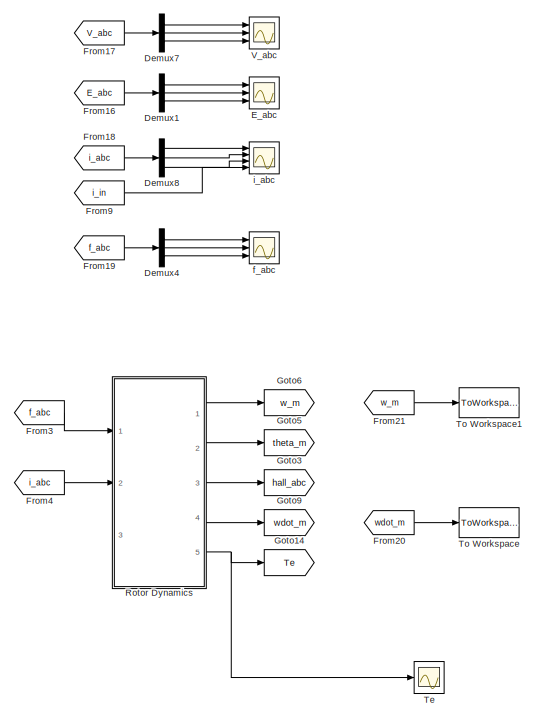
[diagram: root canvas - part 1/2, top right region]
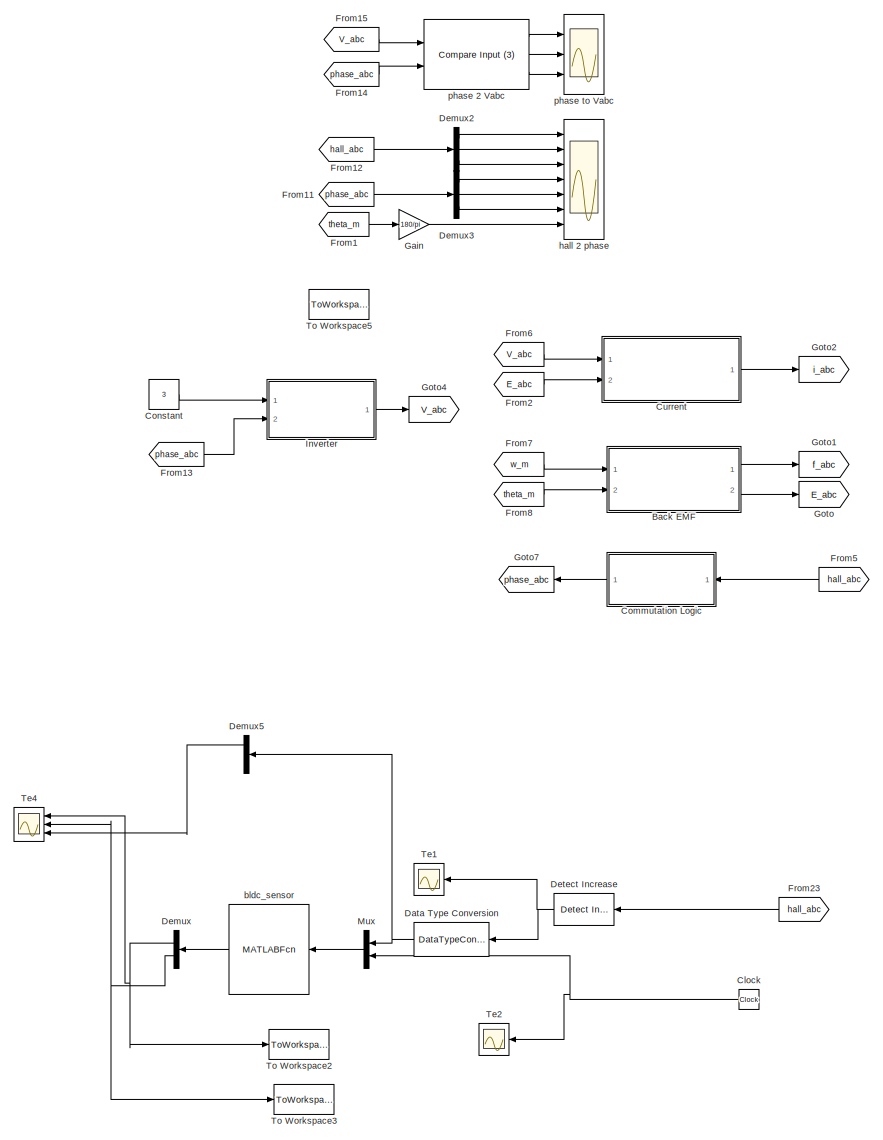
[diagram: root canvas - part 2/2, left side, full height]
MODEL slx_8224983045bb
KIND model
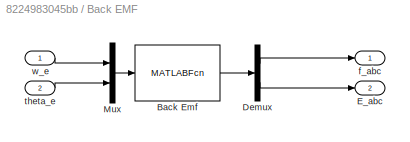
BLOCK [SubSystem] Back EMF
  Ports = [2, 2]
  RequestExecContextInheritance = off
BLOCK [MATLABFcn] Back EMF/Back Emf
  MATLABFcn = bldc_backemf
  Output1D = off
  OutputDimensions = [6,1]
  Ports = [1, 1]
BLOCK [Demux] Back EMF/Demux
  DisplayOption = bar
  Outputs = [3 3]
  Ports = [1, 2]
BLOCK [Outport] Back EMF/E_abc
  IconDisplay = Port number
  Port = 2
BLOCK [Mux] Back EMF/Mux
  DisplayOption = bar
  Inputs = [1;1]
  Ports = [2, 1]
BLOCK [Outport] Back EMF/f_abc
  IconDisplay = Port number
BLOCK [Inport] Back EMF/theta_e
  IconDisplay = Port number
  Port = 2
BLOCK [Inport] Back EMF/w_e
  IconDisplay = Port number
BLOCK [Clock] Clock
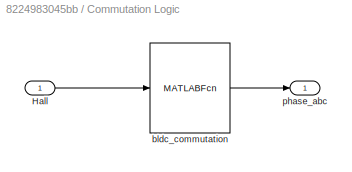
BLOCK [SubSystem] Commutation Logic
  Ports = [1, 1]
  RequestExecContextInheritance = off
BLOCK [Inport] Commutation Logic/Hall 
  IconDisplay = Port number
BLOCK [MATLABFcn] Commutation Logic/bldc_commutation
  MATLABFcn = bldc_commutation
  Output1D = off
  OutputDimensions = [3,1]
  Ports = [1, 1]
BLOCK [Outport] Commutation Logic/phase_abc
  IconDisplay = Port number
BLOCK [Constant] Constant
  Value = 3
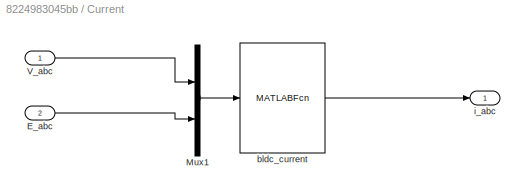
BLOCK [SubSystem] Current
  Ports = [2, 1]
  RequestExecContextInheritance = off
BLOCK [Inport] Current/E_abc
  IconDisplay = Port number
  Port = 2
BLOCK [Mux] Current/Mux1
  DisplayOption = bar
  Inputs = [3;3]
  Ports = [2, 1]
BLOCK [Inport] Current/V_abc
  IconDisplay = Port number
BLOCK [MATLABFcn] Current/bldc_current
  MATLABFcn = bldc_current
  Output1D = off
  OutputDimensions = [3,1]
  Ports = [1, 1]
BLOCK [Outport] Current/i_abc
  IconDisplay = Port number
BLOCK [DataTypeConversion] Data Type Conversion
  OutDataTypeStr = double
  RndMeth = Floor
  SampleTime = dt
  SaturateOnIntegerOverflow = off
BLOCK [Demux] Demux
  DisplayOption = bar
  Outputs = 2
  Ports = [1, 2]
BLOCK [Demux] Demux1
  DisplayOption = bar
  Outputs = 3
  Ports = [1, 3]
BLOCK [Demux] Demux2
  DisplayOption = bar
  Outputs = 3
  Ports = [1, 3]
BLOCK [Demux] Demux3
  DisplayOption = bar
  Outputs = 3
  Ports = [1, 3]
BLOCK [Demux] Demux4
  DisplayOption = bar
  Outputs = 3
  Ports = [1, 3]
BLOCK [Demux] Demux5
  DisplayOption = bar
  Outputs = 3
  Ports = [1, 3]
BLOCK [Demux] Demux7
  DisplayOption = bar
  Outputs = 3
  Ports = [1, 3]
BLOCK [Demux] Demux8
  DisplayOption = bar
  Outputs = 3
  Ports = [1, 3]
BLOCK [Reference] Detect Increase  REF=simulink/Logic and Bit
Operations/Detect
Increase
  InputProcessing = Inherited
  OutDataTypeStr = uint8
  Ports = [1, 1]
  SourceBlock = simulink/Logic and Bit\nOperations/Detect\nIncrease
  SourceType = Detect Increase
  vinit = 0.0
BLOCK [Scope] E_abc
  Floating = off
  LimitDataPoints = off
  NumInputPorts = 3
  Ports = [3]
  SaveName = ScopeData6
  ShowLegends = off
  TimeRange = 60
  YMax = 20500~5~5
  YMin = 18000~-5~-5
BLOCK [From] From1
  GotoTag = theta_m
BLOCK [From] From11
  GotoTag = phase_abc
BLOCK [From] From12
  GotoTag = hall_abc
BLOCK [From] From13
  GotoTag = phase_abc
BLOCK [From] From14
  GotoTag = phase_abc
BLOCK [From] From15
  GotoTag = V_abc
BLOCK [From] From16
  GotoTag = E_abc
BLOCK [From] From17
  GotoTag = V_abc
BLOCK [From] From18
  GotoTag = i_abc
BLOCK [From] From19
  GotoTag = f_abc
BLOCK [From] From2
  GotoTag = E_abc
BLOCK [From] From20
  GotoTag = wdot_m
BLOCK [From] From21
  GotoTag = w_m
BLOCK [From] From23
  GotoTag = hall_abc
BLOCK [From] From3
  GotoTag = f_abc
BLOCK [From] From4
  GotoTag = i_abc
BLOCK [From] From5
  GotoTag = hall_abc
BLOCK [From] From6
  GotoTag = V_abc
BLOCK [From] From7
  GotoTag = w_m
BLOCK [From] From8
  GotoTag = theta_m
BLOCK [From] From9
  GotoTag = i_in
BLOCK [Gain] Gain
  Gain = 180/pi
  OutDataTypeStr = Inherit: Inherit via internal rule
  ParamDataTypeStr = Inherit: Inherit via internal rule
  SaturateOnIntegerOverflow = off
BLOCK [Goto] Goto
  GotoTag = E_abc
BLOCK [Goto] Goto1
  GotoTag = f_abc
BLOCK [Goto] Goto14
  GotoTag = Te
BLOCK [Goto] Goto2
  GotoTag = i_abc
BLOCK [Goto] Goto3
  GotoTag = hall_abc
BLOCK [Goto] Goto4
  GotoTag = V_abc
BLOCK [Goto] Goto5
  GotoTag = theta_m
BLOCK [Goto] Goto6
  GotoTag = w_m
BLOCK [Goto] Goto7
  GotoTag = phase_abc
BLOCK [Goto] Goto9
  GotoTag = wdot_m
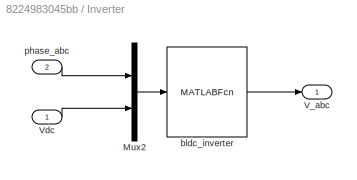
BLOCK [SubSystem] Inverter
  Ports = [2, 1]
  RequestExecContextInheritance = off
BLOCK [Mux] Inverter/Mux2
  DisplayOption = bar
  Inputs = [3;1]
  Ports = [2, 1]
BLOCK [Outport] Inverter/V_abc
  IconDisplay = Port number
BLOCK [Inport] Inverter/Vdc
  IconDisplay = Port number
BLOCK [MATLABFcn] Inverter/bldc_inverter
  MATLABFcn = bldc_inverter
  Output1D = off
  OutputDimensions = [3,1]
  Ports = [1, 1]
BLOCK [Inport] Inverter/phase_abc
  IconDisplay = Port number
  Port = 2
BLOCK [Mux] Mux
  DisplayOption = bar
  Inputs = 2
  Ports = [2, 1]
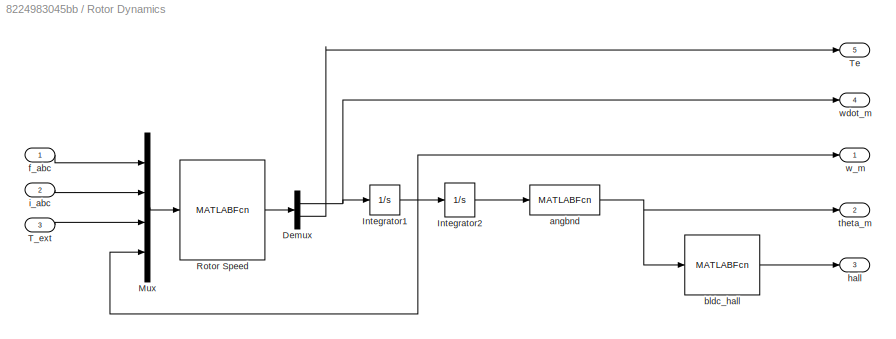
BLOCK [SubSystem] Rotor Dynamics
  Ports = [3, 5]
  RequestExecContextInheritance = off
BLOCK [Demux] Rotor Dynamics/Demux
  DisplayOption = bar
  Outputs = 2
  Ports = [1, 2]
BLOCK [Integrator] Rotor Dynamics/Integrator1
  InitialCondition = w_m_0
  Ports = [1, 1]
BLOCK [Integrator] Rotor Dynamics/Integrator2
  InitialCondition = theta_m_0
  Ports = [1, 1]
BLOCK [Mux] Rotor Dynamics/Mux
  DisplayOption = bar
  Inputs = [3;3;1;1]
  Ports = [4, 1]
BLOCK [MATLABFcn] Rotor Dynamics/Rotor Speed
  MATLABFcn = bldc_speed
  Output1D = off
  OutputDimensions = [2,1]
  Ports = [1, 1]
BLOCK [Inport] Rotor Dynamics/T_ext
  IconDisplay = Port number
  Port = 3
BLOCK [Outport] Rotor Dynamics/Te
  IconDisplay = Port number
  Port = 5
BLOCK [MATLABFcn] Rotor Dynamics/angbnd
  MATLABFcn = angbnd
  Ports = [1, 1]
BLOCK [MATLABFcn] Rotor Dynamics/bldc_hall
  MATLABFcn = bldc_hall
  Output1D = off
  Ports = [1, 1]
BLOCK [Inport] Rotor Dynamics/f_abc
  IconDisplay = Port number
BLOCK [Outport] Rotor Dynamics/hall
  IconDisplay = Port number
  Port = 3
BLOCK [Inport] Rotor Dynamics/i_abc
  IconDisplay = Port number
  Port = 2
BLOCK [Outport] Rotor Dynamics/theta_m
  IconDisplay = Port number
  Port = 2
BLOCK [Outport] Rotor Dynamics/w_m
  IconDisplay = Port number
BLOCK [Outport] Rotor Dynamics/wdot_m
  IconDisplay = Port number
  Port = 4
BLOCK [Scope] Te
  Floating = off
  LimitDataPoints = off
  NumInputPorts = 1
  Ports = [1]
  SaveName = ScopeData7
  ShowLegends = off
  TimeRange = 1
  YMax = 2.4e-05
  YMin = 1.2e-05
BLOCK [Scope] Te1
  Floating = off
  LimitDataPoints = off
  NumInputPorts = 1
  Ports = [1]
  SampleInput = on
  ShowLegends = off
  TimeRange = 1
  YMax = 2.4e-05
  YMin = 1.2e-05
BLOCK [Scope] Te2
  Floating = off
  LimitDataPoints = off
  NumInputPorts = 1
  Ports = [1]
  SampleInput = on
  SaveName = ScopeData3
  ShowLegends = off
  TimeRange = 1
  YMax = 2.4e-05
  YMin = 1.2e-05
BLOCK [Scope] Te4
  Floating = off
  LimitDataPoints = off
  NumInputPorts = 3
  Ports = [3]
  SampleInput = on
  SampleTime = dt
  SaveName = ScopeData10
  ShowLegends = off
  TimeRange = 1
  YMax = 87.3~4~5
  YMin = 86.6~-4~-5
BLOCK [ToWorkspace] To Workspace
  FixptAsFi = on
  MaxDataPoints = inf
  Ports = [1]
  SampleTime = -1
  Save2DSignal = 3-D array (concatenate along third dimension)
  VariableName = wdot_m
BLOCK [ToWorkspace] To Workspace1
  FixptAsFi = on
  MaxDataPoints = inf
  Ports = [1]
  SampleTime = -1
  Save2DSignal = 3-D array (concatenate along third dimension)
  VariableName = w_m
BLOCK [ToWorkspace] To Workspace2
  FixptAsFi = on
  MaxDataPoints = inf
  Ports = [1]
  SampleTime = -1
  Save2DSignal = 3-D array (concatenate along third dimension)
  VariableName = w_m1
BLOCK [ToWorkspace] To Workspace3
  FixptAsFi = on
  MaxDataPoints = inf
  Ports = [1]
  SampleTime = -1
  Save2DSignal = 3-D array (concatenate along third dimension)
  VariableName = T_m1
BLOCK [ToWorkspace] To Workspace5
  FixptAsFi = on
  MaxDataPoints = inf
  Ports = [1]
  SampleTime = -1
  Save2DSignal = 3-D array (concatenate along third dimension)
  VariableName = V_dc_m
BLOCK [Scope] V_abc
  Floating = off
  LimitDataPoints = off
  NumInputPorts = 3
  Ports = [3]
  SaveName = ScopeData5
  ShowLegends = off
  TimeRange = 60
  YMax = 20500~5~5
  YMin = 18000~-5~-5
BLOCK [MATLABFcn] bldc_sensor
  MATLABFcn = bldc_sensor
  Output1D = off
  OutputDimensions = [2,1]
  Ports = [1, 1]
  SampleTime = dt
BLOCK [Scope] f_abc
  Floating = off
  LimitDataPoints = off
  NumInputPorts = 3
  Ports = [3]
  SaveName = ScopeData1
  ShowLegends = off
  TimeRange = 60
  YMax = 20500~5~5
  YMin = 18000~-5~-5
BLOCK [Scope] hall 2 phase
  Floating = off
  LimitDataPoints = off
  NumInputPorts = 7
  Ports = [7]
  SampleInput = on
  SaveName = ScopeData8
  ShowLegends = off
  TimeRange = 5
  YMax = 1~1~1~1~1~1~200
  YMin = 0~0~0~-1~-1~-1~-200
BLOCK [Scope] i_abc
  Floating = off
  LimitDataPoints = off
  NumInputPorts = 4
  Ports = [4]
  SampleInput = on
  SaveName = ScopeData4
  ShowLegends = off
  TimeRange = 60
  YMax = 20500~5~5~5
  YMin = 18000~-5~-5~-5
BLOCK [Reference] phase 2 Vabc  REF=tool/Compare Input (3)  (lib defined in slx_5360df2d558a)
  Ports = [2, 3]
  SourceBlock = tool/Compare Input (3)
  SourceType = SubSystem
BLOCK [Scope] phase to Vabc
  Floating = off
  LimitDataPoints = off
  NumInputPorts = 3
  Ports = [3]
  SampleInput = on
  SaveName = ScopeData2
  ShowLegends = off
  TimeRange = 5
  YMax = 1~1~1
  YMin = -1~-1~-1
LINE Back EMF/Back Emf:1 -> Back EMF/Demux:1
LINE Back EMF/Demux:1 -> Back EMF/f_abc:1
LINE Back EMF/Demux:2 -> Back EMF/E_abc:1
LINE Back EMF/Mux:1 -> Back EMF/Back Emf:1
LINE Back EMF/theta_e:1 -> Back EMF/Mux:2
LINE Back EMF/w_e:1 -> Back EMF/Mux:1
LINE Back EMF:1 -> Goto1:1
LINE Back EMF:2 -> Goto:1
NET Clock:1 -> Mux:2, Te2:1
LINE Commutation Logic/Hall :1 -> Commutation Logic/bldc_commutation:1
LINE Commutation Logic/bldc_commutation:1 -> Commutation Logic/phase_abc:1
LINE Commutation Logic:1 -> Goto7:1
LINE Constant:1 -> Inverter:1
LINE Current/E_abc:1 -> Current/Mux1:2
LINE Current/Mux1:1 -> Current/bldc_current:1
LINE Current/V_abc:1 -> Current/Mux1:1
LINE Current/bldc_current:1 -> Current/i_abc:1
LINE Current:1 -> Goto2:1
NET Data Type Conversion:1 -> Demux5:1, Mux:1
LINE Demux1:1 -> E_abc:1
LINE Demux1:2 -> E_abc:2
LINE Demux1:3 -> E_abc:3
LINE Demux2:1 -> hall 2 phase:1
LINE Demux2:2 -> hall 2 phase:2
LINE Demux2:3 -> hall 2 phase:3
LINE Demux3:1 -> hall 2 phase:4
LINE Demux3:2 -> hall 2 phase:5
LINE Demux3:3 -> hall 2 phase:6
LINE Demux4:1 -> f_abc:1
LINE Demux4:2 -> f_abc:2
LINE Demux4:3 -> f_abc:3
LINE Demux5:1 -> Te4:3
LINE Demux7:1 -> V_abc:1
LINE Demux7:2 -> V_abc:2
LINE Demux7:3 -> V_abc:3
LINE Demux8:1 -> i_abc:1
LINE Demux8:2 -> i_abc:2
LINE Demux8:3 -> i_abc:3
NET Demux:1 -> Te4:1, To Workspace2:1
NET Demux:2 -> Te4:2, To Workspace3:1
NET Detect Increase:1 -> Data Type Conversion:1, Te1:1
LINE From11:1 -> Demux3:1
LINE From12:1 -> Demux2:1
LINE From13:1 -> Inverter:2
LINE From14:1 -> phase 2 Vabc:2
LINE From15:1 -> phase 2 Vabc:1
LINE From16:1 -> Demux1:1
LINE From17:1 -> Demux7:1
LINE From18:1 -> Demux8:1
LINE From19:1 -> Demux4:1
LINE From1:1 -> Gain:1
LINE From20:1 -> To Workspace:1
LINE From21:1 -> To Workspace1:1
LINE From23:1 -> Detect Increase:1
LINE From2:1 -> Current:2
LINE From3:1 -> Rotor Dynamics:1
LINE From4:1 -> Rotor Dynamics:2
LINE From5:1 -> Commutation Logic:1
LINE From6:1 -> Current:1
LINE From7:1 -> Back EMF:1
LINE From8:1 -> Back EMF:2
LINE From9:1 -> i_abc:4
LINE Gain:1 -> hall 2 phase:7
LINE Inverter/Mux2:1 -> Inverter/bldc_inverter:1
LINE Inverter/Vdc:1 -> Inverter/Mux2:2
LINE Inverter/bldc_inverter:1 -> Inverter/V_abc:1
LINE Inverter/phase_abc:1 -> Inverter/Mux2:1
LINE Inverter:1 -> Goto4:1
LINE Mux:1 -> bldc_sensor:1
NET Rotor Dynamics/Demux:1 -> Rotor Dynamics/Integrator1:1, Rotor Dynamics/wdot_m:1
LINE Rotor Dynamics/Demux:2 -> Rotor Dynamics/Te:1
NET Rotor Dynamics/Integrator1:1 -> Rotor Dynamics/Integrator2:1, Rotor Dynamics/Mux:4, Rotor Dynamics/w_m:1
LINE Rotor Dynamics/Integrator2:1 -> Rotor Dynamics/angbnd:1
LINE Rotor Dynamics/Mux:1 -> Rotor Dynamics/Rotor Speed:1
LINE Rotor Dynamics/Rotor Speed:1 -> Rotor Dynamics/Demux:1
LINE Rotor Dynamics/T_ext:1 -> Rotor Dynamics/Mux:3
NET Rotor Dynamics/angbnd:1 -> Rotor Dynamics/bldc_hall:1, Rotor Dynamics/theta_m:1
LINE Rotor Dynamics/bldc_hall:1 -> Rotor Dynamics/hall:1
LINE Rotor Dynamics/f_abc:1 -> Rotor Dynamics/Mux:1
LINE Rotor Dynamics/i_abc:1 -> Rotor Dynamics/Mux:2
LINE Rotor Dynamics:1 -> Goto6:1
LINE Rotor Dynamics:2 -> Goto5:1
LINE Rotor Dynamics:3 -> Goto3:1
LINE Rotor Dynamics:4 -> Goto9:1
NET Rotor Dynamics:5 -> Goto14:1, Te:1
LINE bldc_sensor:1 -> Demux:1
LINE phase 2 Vabc:1 -> phase to Vabc:1
LINE phase 2 Vabc:2 -> phase to Vabc:2
LINE phase 2 Vabc:3 -> phase to Vabc:3
note: NET lines group one-source signal fan-out (src -> all destinations, sorted); 1:1 wires keep LINE
